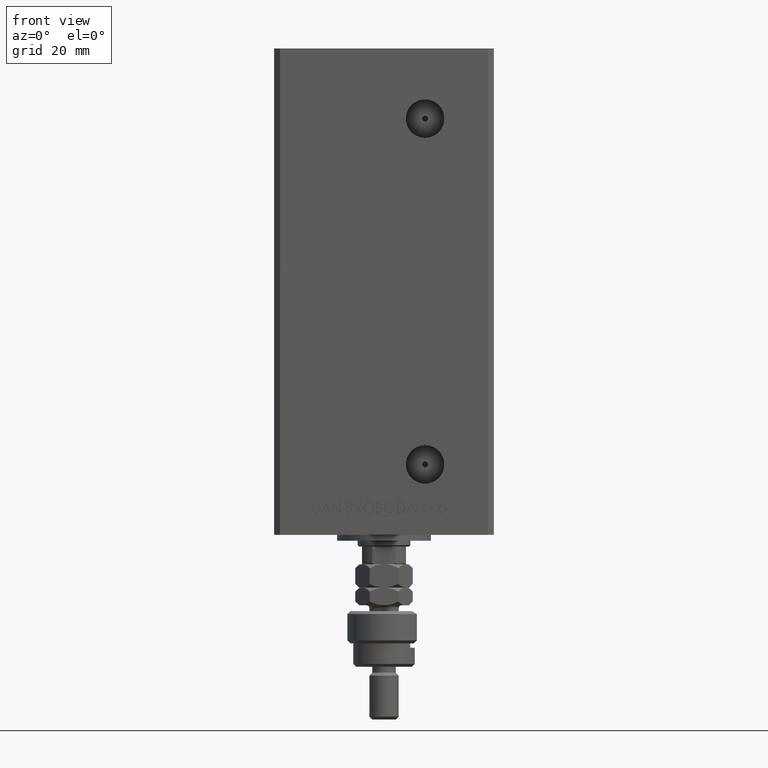
[diagram: clean part render]
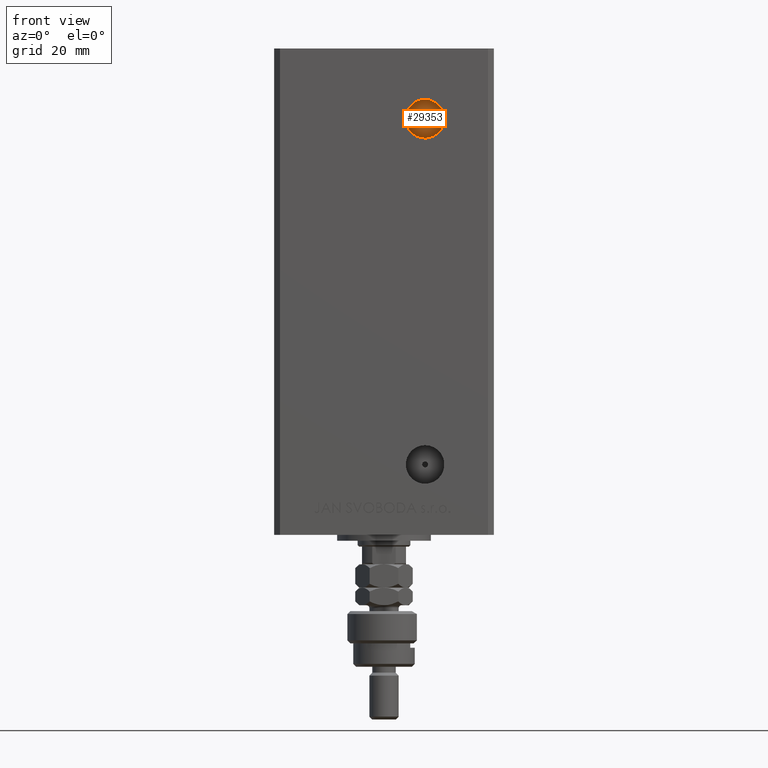
[diagram: same view with one face highlighted and labeled with its STEP entity id]
A machine part, front view. The second image highlights one B-rep face of the part: STEP entity #29353.
In plain terms, the highlighted planar face has unit normal (0, -1, 0).
Its self-contained STEP definition (entity closure, byte-faithful):
#1806 = DIRECTION ( 'NONE',  ( 0.000000000000000000, -1.000000000000000000, 0.000000000000000000 ) ) ;
#1916 = EDGE_LOOP ( 'NONE', ( #34637, #47745 ) ) ;
#3109 = DIRECTION ( 'NONE',  ( 0.000000000000000000, 0.000000000000000000, -1.000000000000000000 ) ) ;
#4304 = VERTEX_POINT ( 'NONE', #37642 ) ;
#5024 = CARTESIAN_POINT ( 'NONE',  ( 13.99999999999999112, -19.50000000000000355, 128.0000000000000000 ) ) ;
#8635 = EDGE_CURVE ( 'NONE', #48570, #23960, #18527, .T. ) ;
#17824 = DIRECTION ( 'NONE',  ( -0.000000000000000000, 1.000000000000000000, -0.000000000000000000 ) ) ;
#17945 = EDGE_CURVE ( 'NONE', #23960, #48570, #42444, .T. ) ;
#17972 = EDGE_LOOP ( 'NONE', ( #25278, #32809 ) ) ;
#18101 = CARTESIAN_POINT ( 'NONE',  ( 13.99999999999999112, -19.50000000000000355, 127.0000000000000000 ) ) ;
#18527 = CIRCLE ( 'NONE', #21882, 1.000000000000000888 ) ;
#21761 = DIRECTION ( 'NONE',  ( 0.000000000000000000, -0.000000000000000000, -1.000000000000000000 ) ) ;
#21882 = AXIS2_PLACEMENT_3D ( 'NONE', #23286, #39468, #3109 ) ;
#21991 = DIRECTION ( 'NONE',  ( 0.000000000000000000, 0.000000000000000000, -1.000000000000000000 ) ) ;
#22327 = CARTESIAN_POINT ( 'NONE',  ( 13.99999999999999112, -19.50000000000000355, 127.0000000000000000 ) ) ;
#23286 = CARTESIAN_POINT ( 'NONE',  ( 13.99999999999999112, -19.50000000000000355, 127.0000000000000000 ) ) ;
#23746 = PLANE ( 'NONE',  #41119 ) ;
#23960 = VERTEX_POINT ( 'NONE', #39940 ) ;
#24017 = CIRCLE ( 'NONE', #39277, 6.580000000000002736 ) ;
#24153 = EDGE_CURVE ( 'NONE', #45773, #4304, #24017, .T. ) ;
#24525 = AXIS2_PLACEMENT_3D ( 'NONE', #22327, #17824, #49686 ) ;
#25278 = ORIENTED_EDGE ( 'NONE', *, *, #17945, .F. ) ;
#25514 = AXIS2_PLACEMENT_3D ( 'NONE', #49872, #1806, #21991 ) ;
#27724 = FACE_BOUND ( 'NONE', #17972, .T. ) ;
#28242 = CARTESIAN_POINT ( 'NONE',  ( 0.000000000000000000, -19.50000000000000355, 0.000000000000000000 ) ) ;
#29353 = ADVANCED_FACE ( 'NONE', ( #27724, #43914 ), #23746, .T. ) ;
#30844 = DIRECTION ( 'NONE',  ( 0.000000000000000000, 0.000000000000000000, -1.000000000000000000 ) ) ;
#32809 = ORIENTED_EDGE ( 'NONE', *, *, #8635, .F. ) ;
#34637 = ORIENTED_EDGE ( 'NONE', *, *, #41467, .F. ) ;
#37642 = CARTESIAN_POINT ( 'NONE',  ( 13.99999999999999112, -19.50000000000000355, 120.4200000000000017 ) ) ;
#38947 = CARTESIAN_POINT ( 'NONE',  ( 13.99999999999999112, -19.50000000000000355, 133.5800000000000125 ) ) ;
#39277 = AXIS2_PLACEMENT_3D ( 'NONE', #18101, #46777, #30844 ) ;
#39468 = DIRECTION ( 'NONE',  ( 0.000000000000000000, -1.000000000000000000, 0.000000000000000000 ) ) ;
#39805 = CIRCLE ( 'NONE', #24525, 6.580000000000002736 ) ;
#39940 = CARTESIAN_POINT ( 'NONE',  ( 13.99999999999999112, -19.50000000000000355, 126.0000000000000000 ) ) ;
#41119 = AXIS2_PLACEMENT_3D ( 'NONE', #28242, #44439, #21761 ) ;
#41467 = EDGE_CURVE ( 'NONE', #4304, #45773, #39805, .T. ) ;
#42444 = CIRCLE ( 'NONE', #25514, 1.000000000000000888 ) ;
#43914 = FACE_OUTER_BOUND ( 'NONE', #1916, .T. ) ;
#44439 = DIRECTION ( 'NONE',  ( 0.000000000000000000, -1.000000000000000000, 0.000000000000000000 ) ) ;
#45773 = VERTEX_POINT ( 'NONE', #38947 ) ;
#46777 = DIRECTION ( 'NONE',  ( -0.000000000000000000, 1.000000000000000000, -0.000000000000000000 ) ) ;
#47745 = ORIENTED_EDGE ( 'NONE', *, *, #24153, .F. ) ;
#48570 = VERTEX_POINT ( 'NONE', #5024 ) ;
#49686 = DIRECTION ( 'NONE',  ( 0.000000000000000000, 0.000000000000000000, -1.000000000000000000 ) ) ;
#49872 = CARTESIAN_POINT ( 'NONE',  ( 13.99999999999999112, -19.50000000000000355, 127.0000000000000000 ) ) ;